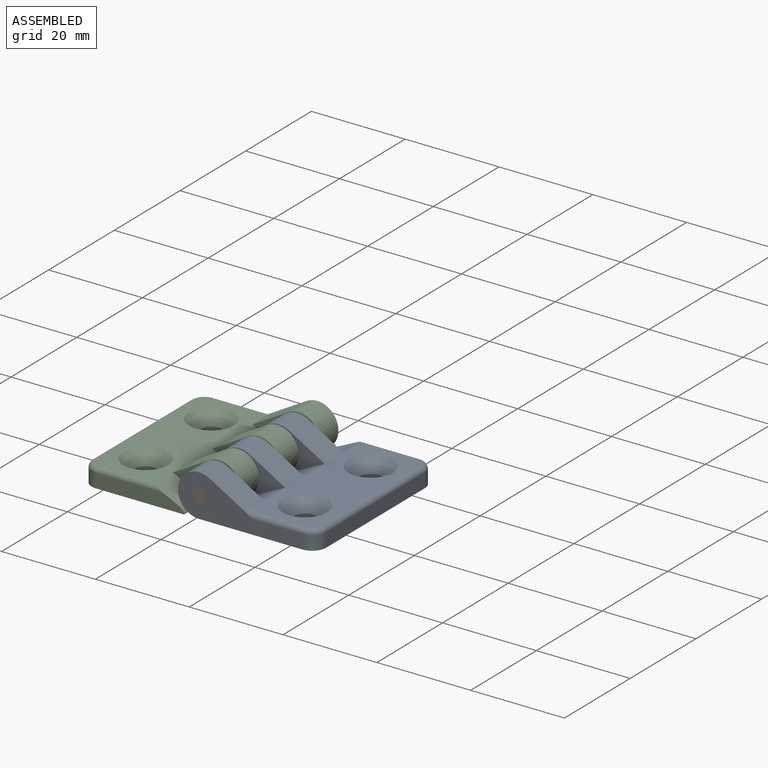
[diagram: assembled view]
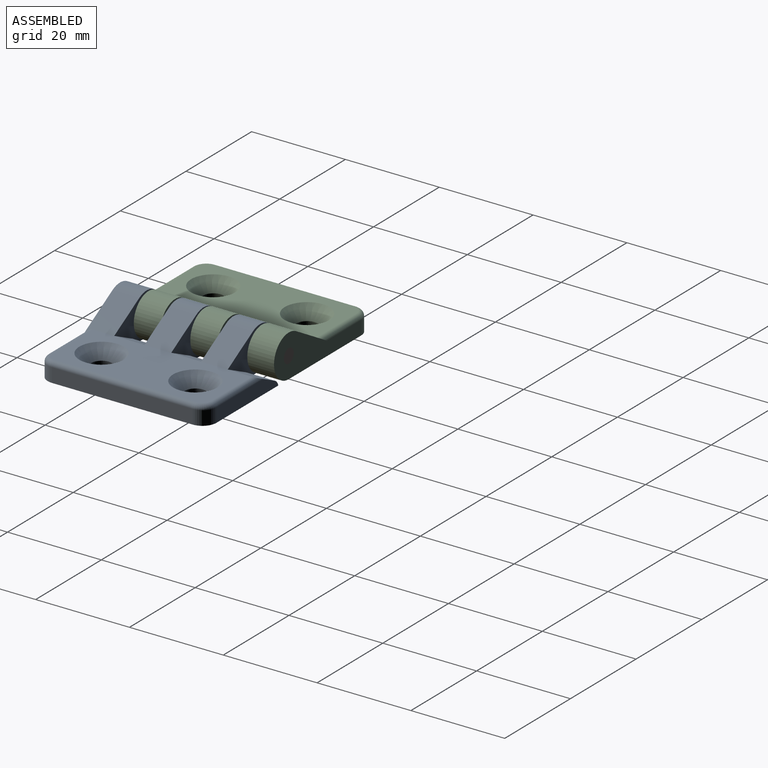
[diagram: assembled view, second angle]
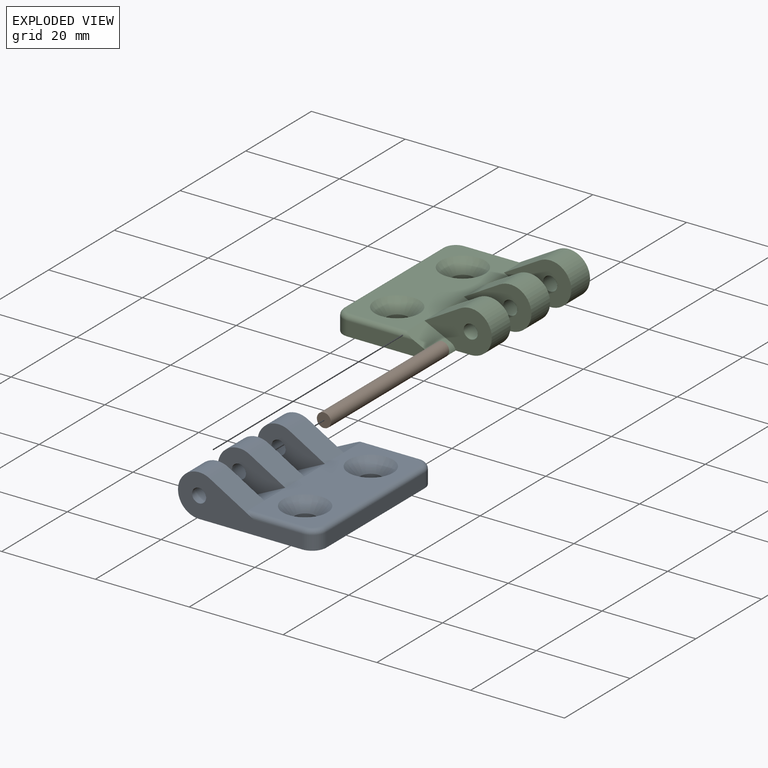
[diagram: exploded view]
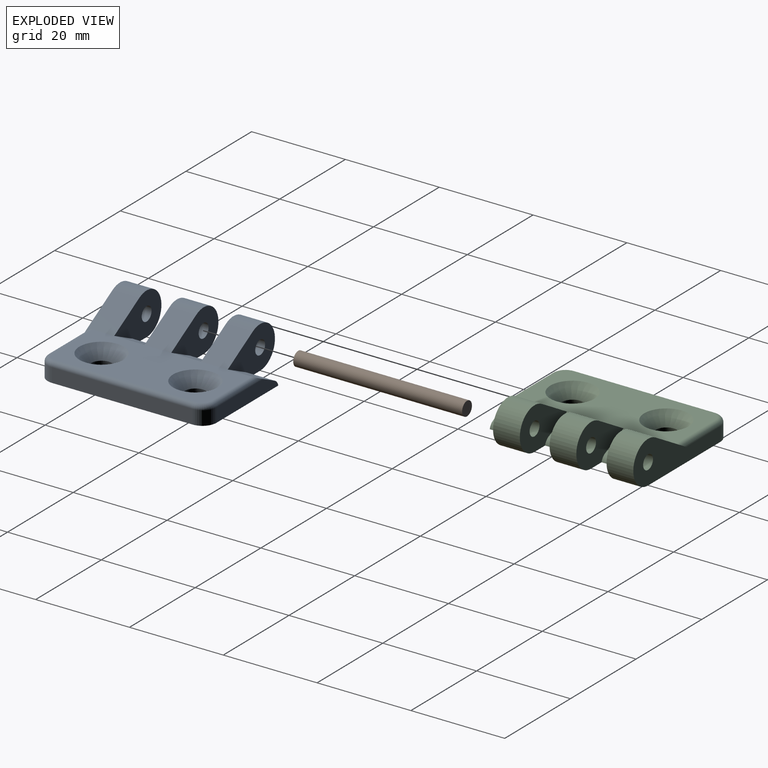
[diagram: exploded view, second angle]
ASSEMBLY  parts=3 mates=2
PART A: 36 faces, bbox 29.7x36.5x9 mm
  f0: plane 36x25mm, normal (0,0,-1), area 804mm2, adj f1,f2,f3,f4,f5,f9,f11,f13
  f1: plane 30x3mm, normal (-1,0,0), area 90mm2, adj f0,f26,f27,f30
  f2: plane 26.5x9mm, normal (0,1,0), area 129mm2, adj f0,f12,f13,f14,f26,f32
  f3: cylinder r=2.25mm len=4.5mm, axis (0,0,1), area 21.2mm2, adj f0,f7
  f4: cylinder r=2.25mm len=4.5mm, axis (0,0,1), area 21.2mm2, adj f0,f6
  f5: plane 18.81x3mm, normal (0,-1,0), area 51.2mm2, adj f0,f19,f27,f28,f33
  f6: cone r=2.25mm half-angle=45deg, axis (0,0,1), area 77.8mm2, adj f4,f17
  f7: cone r=2.25mm half-angle=45deg, axis (0,0,1), area 77.8mm2, adj f3,f17
  f8: cylinder r=1.5mm len=5.7mm, axis (0,-1,0), area 53.7mm2, adj f18,f21
  f9: cylinder r=4.5mm len=9mm, axis (0,-1,0), area 94mm2, adj f0,f16,f18,f21
  f10: cylinder r=1.5mm len=5.7mm, axis (0,-1,0), area 53.7mm2, adj f20,f24
  f11: cylinder r=4.5mm len=9mm, axis (0,-1,0), area 94mm2, adj f0,f15,f20,f24
  f12: cylinder r=1.5mm len=5.7mm, axis (0,-1,0), area 53.7mm2, adj f2,f23
  f13: cylinder r=4.5mm len=9mm, axis (0,-1,0), area 94mm2, adj f0,f2,f14,f23
  f14: plane 9.35x5.7mm, normal (-0.5,0,0.87), area 50.6mm2, adj f2,f13,f17,f23,f32
  f15: plane 7.62x5.7mm, normal (-0.5,0,0.87), area 50.1mm2, adj f11,f17,f20,f24
  f16: plane 7.62x5.7mm, normal (-0.5,0,0.87), area 50.1mm2, adj f9,f17,f18,f21
  f17: plane 34x14.13mm, normal (0,0,1), area 337.1mm2, adj f6,f7,f14,f15,f16,f19,f22,f25
  f18: plane 14.37x9mm, normal (0,-1,0), area 75.9mm2, adj f0,f8,f9,f16,f19,f33
  f19: plane 6.1x5.59mm, normal (0.43,0,0.9), area 37.3mm2, adj f5,f17,f18,f28,f33
  f20: plane 14.37x9mm, normal (0,-1,0), area 75.9mm2, adj f0,f10,f11,f15,f22,f34
  f21: plane 14.37x9mm, normal (0,1,0), area 75.9mm2, adj f0,f8,f9,f16,f22,f34
  f22: plane 6.35x5.59mm, normal (0.43,0,0.9), area 39.4mm2, adj f17,f20,f21,f34
  f23: plane 14.37x9mm, normal (0,-1,0), area 75.9mm2, adj f0,f12,f13,f14,f25,f35
  f24: plane 14.37x9mm, normal (0,1,0), area 75.9mm2, adj f0,f10,f11,f15,f25,f35
  f25: plane 6.45x5.59mm, normal (0.43,0,0.9), area 40mm2, adj f17,f23,f24,f35
  f26: cylinder r=3mm len=3mm, axis (0,0,1), area 14.1mm2, adj f0,f1,f2,f31
  f27: cylinder r=3mm len=3mm, axis (0,0,-1), area 14.1mm2, adj f0,f1,f5,f29
  f28: cylinder r=1mm len=14.23mm, axis (-1,0,0), area 20.3mm2, adj f5,f17,f19,f29
  f29: torus R=2mm, axis (0,0,1), area 6.5mm2, adj f17,f27,f28,f30
  f30: cylinder r=1mm len=30mm, axis (0,-1,0), area 47.1mm2, adj f1,f17,f29,f31
  f31: torus R=2mm, axis (0,0,1), area 6.5mm2, adj f17,f26,f30,f32
  f32: cylinder r=1mm len=12.13mm, axis (1,0,0), area 18.1mm2, adj f2,f14,f17,f31
  f33: cylinder r=2mm len=6.1mm, axis (0,1,0), area 10.8mm2, adj f0,f5,f18,f19
  f34: cylinder r=2mm len=6.35mm, axis (0,1,0), area 11.2mm2, adj f0,f20,f21,f22
  f35: cylinder r=2mm len=6.45mm, axis (0,1,0), area 11.4mm2, adj f0,f23,f24,f25
PART B: 3 faces, bbox 3x36x3 mm
  f0: plane 3x3mm, normal (0,-1,0), area 7.1mm2, adj f1
  f1: cylinder r=1.5mm len=36mm, axis (0,1,0), area 339.3mm2, adj f0,f2
  f2: plane 3x3mm, normal (0,1,0), area 7.1mm2, adj f1
PART C: same geometry as A
PLACE A rot(axis=(0,0,1),180deg) t=(1.7,-33.16,-3.36)mm
PLACE B t=(1.7,-32.56,-3.36)mm
PLACE C t=(1.7,-32.56,-3.36)mm
MATE cylindrical B.f1 <-> A.f8  axis (0,1,0) through (1.7,-50.86,0.64)mm
MATE revolute C.f8 <-> A.f8  axis (0,-1,0) through (1.7,-32.71,0.64)mm
